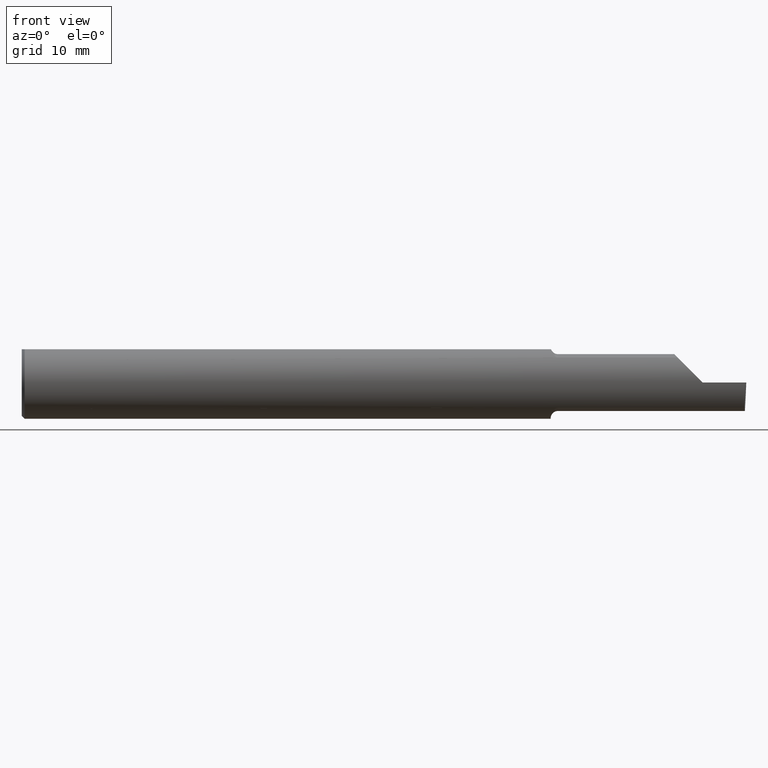
[diagram: clean part render]
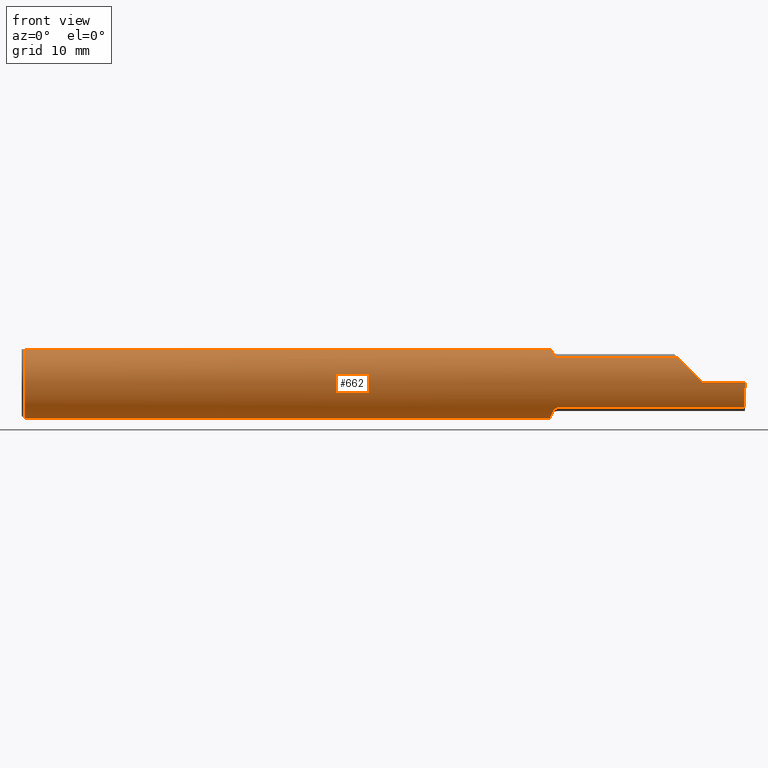
[diagram: same view with one face highlighted and labeled with its STEP entity id]
A machine part, front view. The second image highlights one B-rep face of the part: STEP entity #662.
In plain terms, the highlighted cylindrical surface (edge-blend (fillet) strip) has radius 3.175 mm, axis along (-1, -0, -0).
Its self-contained STEP definition (entity closure, byte-faithful):
#2 = EDGE_CURVE ( 'NONE', #615, #495, #666, .T. ) ;
#27 = CIRCLE ( 'NONE', #490, 0.1250000000000000000 ) ;
#30 = CARTESIAN_POINT ( 'NONE',  ( 2.493932522392288131, -0.1128945894460738342, -0.06276352435079111947 ) ) ;
#32 = CARTESIAN_POINT ( 'NONE',  ( 2.287236475649208511, -0.1128945894460737787, 0.06276352435079125824 ) ) ;
#35 = DIRECTION ( 'NONE',  ( 0.000000000000000000, 0.000000000000000000, -1.000000000000000000 ) ) ;
#40 = LINE ( 'NONE', #168, #307 ) ;
#54 = ORIENTED_EDGE ( 'NONE', *, *, #228, .F. ) ;
#55 = CARTESIAN_POINT ( 'NONE',  ( 0.000000000000000000, 0.04898979485566374442, 0.1149999999999999217 ) ) ;
#56 = CARTESIAN_POINT ( 'NONE',  ( 1.824999999999999956, 0.000000000000000000, 0.000000000000000000 ) ) ;
#62 = VERTEX_POINT ( 'NONE', #209 ) ;
#66 = FACE_OUTER_BOUND ( 'NONE', #442, .T. ) ;
#73 = CARTESIAN_POINT ( 'NONE',  ( 2.317450832343515454, -0.1250000000000000000, 0.03254916765648425969 ) ) ;
#79 = EDGE_CURVE ( 'NONE', #808, #133, #363, .T. ) ;
#90 = EDGE_CURVE ( 'NONE', #647, #615, #40, .T. ) ;
#94 = VECTOR ( 'NONE', #320, 39.37007874015748143 ) ;
#104 = LINE ( 'NONE', #735, #580 ) ;
#105 = CARTESIAN_POINT ( 'NONE',  ( 1.835190181894028605, -0.07991573988362411785, -0.09622915934337318566 ) ) ;
#110 = CARTESIAN_POINT ( 'NONE',  ( 1.849999999999999867, -0.09042045454545430405, 0.08630840862739518060 ) ) ;
#114 = CARTESIAN_POINT ( 'NONE',  ( 1.825234743326751952, -0.03866586649758532029, -0.1190059989239850707 ) ) ;
#123 = DIRECTION ( 'NONE',  ( -1.000000000000000000, -0.000000000000000000, -0.000000000000000000 ) ) ;
#127 = CARTESIAN_POINT ( 'NONE',  ( 0.000000000000000000, -0.04898979485566374442, 0.1149999999999999217 ) ) ;
#133 = VERTEX_POINT ( 'NONE', #537 ) ;
#142 = CARTESIAN_POINT ( 'NONE',  ( 1.826278290187167919, -0.04898979485482030799, 0.1149999999999999217 ) ) ;
#143 = CARTESIAN_POINT ( 'NONE',  ( 2.493502479154698914, -0.09042045454545441507, -0.08630840862739512509 ) ) ;
#151 = EDGE_CURVE ( 'NONE', #719, #743, #344, .T. ) ;
#157 = DIRECTION ( 'NONE',  ( 1.000000000000000000, 0.000000000000000000, 0.000000000000000000 ) ) ;
#164 = DIRECTION ( 'NONE',  ( -1.000000000000000000, -0.000000000000000000, -0.000000000000000000 ) ) ;
#168 = CARTESIAN_POINT ( 'NONE',  ( 3.749399456654637998E-32, -0.1249999999999999861, 3.061616997868380183E-16 ) ) ;
#180 = DIRECTION ( 'NONE',  ( 0.000000000000000000, 0.000000000000000000, -1.000000000000000000 ) ) ;
#201 = ORIENTED_EDGE ( 'NONE', *, *, #720, .F. ) ;
#209 = CARTESIAN_POINT ( 'NONE',  ( 0.01000000000000042348, 0.000000000000000000, -0.1250000000000000000 ) ) ;
#228 = EDGE_CURVE ( 'NONE', #426, #726, #27, .T. ) ;
#229 = AXIS2_PLACEMENT_3D ( 'NONE', #497, #246, #762 ) ;
#230 = CARTESIAN_POINT ( 'NONE',  ( 2.263691591372603895, -0.09042045454545419303, 0.08630840862739529162 ) ) ;
#231 = CARTESIAN_POINT ( 'NONE',  ( 1.839282510427138639, -0.08510692115743009878, -0.09158169095606859267 ) ) ;
#233 = CARTESIAN_POINT ( 'NONE',  ( 1.849999999999999867, -0.09042045454545437344, -0.08630840862739513897 ) ) ;
#237 = CARTESIAN_POINT ( 'NONE',  ( 1.830023755285530740, -0.06757875350159910088, -0.1052824340695055066 ) ) ;
#246 = DIRECTION ( 'NONE',  ( 1.000000000000000000, 0.000000000000000000, 0.000000000000000000 ) ) ;
#249 = LINE ( 'NONE', #127, #616 ) ;
#260 = DIRECTION ( 'NONE',  ( -1.000000000000000000, -0.000000000000000000, -0.000000000000000000 ) ) ;
#262 = ORIENTED_EDGE ( 'NONE', *, *, #547, .F. ) ;
#268 = CARTESIAN_POINT ( 'NONE',  ( 1.826278290187167919, -0.04898979485482030799, 0.1149999999999999217 ) ) ;
#275 = CARTESIAN_POINT ( 'NONE',  ( 2.350000000000000089, -0.1250000000000000278, 1.836970198721028825E-17 ) ) ;
#285 = VECTOR ( 'NONE', #260, 39.37007874015748143 ) ;
#287 = CARTESIAN_POINT ( 'NONE',  ( 2.493502479154698914, -0.09042045454545441507, -0.08630840862739512509 ) ) ;
#298 = DIRECTION ( 'NONE',  ( -1.000000000000000000, -0.000000000000000000, -0.000000000000000000 ) ) ;
#299 = CARTESIAN_POINT ( 'NONE',  ( 1.845169762358873644, -0.08954173371311466290, 0.08723520050116025104 ) ) ;
#301 = CARTESIAN_POINT ( 'NONE',  ( 2.495913306096507522, -0.1250000000000000000, 0.000000000000000000 ) ) ;
#304 = CARTESIAN_POINT ( 'NONE',  ( 1.849999999999999867, -0.09042045454545437344, -0.08630840862739513897 ) ) ;
#307 = VECTOR ( 'NONE', #164, 39.37007874015748143 ) ;
#320 = DIRECTION ( 'NONE',  ( 1.000000000000000000, 0.000000000000000000, 0.000000000000000000 ) ) ;
#329 = CARTESIAN_POINT ( 'NONE',  ( 1.824999999999999956, -0.02763636363636371579, -0.1219066503721543404 ) ) ;
#344 = B_SPLINE_CURVE_WITH_KNOTS ( 'NONE', 3,
 ( #233, #479, #434, #791, #231, #105, #485, #237, #725, #675, #657, #367 ),
 .UNSPECIFIED., .F., .F.,
 ( 4, 2, 2, 2, 2, 4 ),
 ( 1.964009442425878487E-07, 0.0002059214671021853500, 0.0004116465332601281077, 0.0008230966655760250071, 0.001234546797891921581, 0.001645996930207818589 ),
 .UNSPECIFIED. ) ;
#349 = ORIENTED_EDGE ( 'NONE', *, *, #2, .T. ) ;
#357 = CARTESIAN_POINT ( 'NONE',  ( 1.839945076695470139, -0.08578123596776277004, 0.09094459933485994629 ) ) ;
#363 = B_SPLINE_CURVE_WITH_KNOTS ( 'NONE', 3,
 ( #142, #400, #638, #600, #731, #357, #487, #299, #602, #110 ),
 .UNSPECIFIED., .F., .F.,
 ( 4, 2, 2, 2, 4 ),
 ( 5.067393806483457764E-07, 0.0007430328995834972359, 0.001114295979684921251, 0.001299927519735632553, 0.001485559059786344289 ),
 .UNSPECIFIED. ) ;
#367 = CARTESIAN_POINT ( 'NONE',  ( 1.825730677800976975, -0.04400000000000004602, -0.1169999999999999790 ) ) ;
#370 = CYLINDRICAL_SURFACE ( 'NONE', #770, 0.1250000000000000000 ) ;
#374 = CARTESIAN_POINT ( 'NONE',  ( 1.824999999999999956, -0.02763636363636371579, -0.1219066503721543404 ) ) ;
#383 = CARTESIAN_POINT ( 'NONE',  ( 0.000000000000000000, 0.000000000000000000, 0.000000000000000000 ) ) ;
#400 = CARTESIAN_POINT ( 'NONE',  ( 1.827426556614086817, -0.05801934803182792061, 0.1111534264545077366 ) ) ;
#413 = CARTESIAN_POINT ( 'NONE',  ( 2.350000000000000089, -0.1250000000000000278, 1.836970198721028825E-17 ) ) ;
#416 = VERTEX_POINT ( 'NONE', #143 ) ;
#423 = CARTESIAN_POINT ( 'NONE',  ( 2.494776490973177552, -0.1250000000000000278, -0.03254916765648418336 ) ) ;
#426 = VERTEX_POINT ( 'NONE', #329 ) ;
#428 = CARTESIAN_POINT ( 'NONE',  ( 0.01000000000000042348, 0.000000000000000000, 0.000000000000000000 ) ) ;
#432 = DIRECTION ( 'NONE',  ( 0.000000000000000000, 0.000000000000000000, 1.000000000000000000 ) ) ;
#434 = CARTESIAN_POINT ( 'NONE',  ( 1.844768270659623566, -0.08937924045984944887, -0.08740614068309868201 ) ) ;
#442 = EDGE_LOOP ( 'NONE', ( #262, #631, #734, #349, #509, #636, #573, #477, #518, #688, #54, #201, #561 ) ) ;
#470 = CARTESIAN_POINT ( 'NONE',  ( 2.263691591372603895, -0.09042045454545419303, 0.08630840862739529162 ) ) ;
#477 = ORIENTED_EDGE ( 'NONE', *, *, #689, .T. ) ;
#479 = CARTESIAN_POINT ( 'NONE',  ( 1.847250989814109179, -0.09042045454545442895, -0.08630840862739511121 ) ) ;
#483 = AXIS2_PLACEMENT_3D ( 'NONE', #428, #157, #35 ) ;
#485 = CARTESIAN_POINT ( 'NONE',  ( 1.833239374200247518, -0.07597265459956464850, -0.09939534496909259442 ) ) ;
#487 = CARTESIAN_POINT ( 'NONE',  ( 1.841446811421532326, -0.08721672169474553593, 0.08955973280246692925 ) ) ;
#490 = AXIS2_PLACEMENT_3D ( 'NONE', #56, #798, #180 ) ;
#495 = VERTEX_POINT ( 'NONE', #230 ) ;
#497 = CARTESIAN_POINT ( 'NONE',  ( 0.01000000000000042348, 0.000000000000000000, 0.000000000000000000 ) ) ;
#505 = CARTESIAN_POINT ( 'NONE',  ( 1.824999999999999956, 0.04898979485566374442, 0.1149999999999999217 ) ) ;
#509 = ORIENTED_EDGE ( 'NONE', *, *, #634, .F. ) ;
#514 = EDGE_CURVE ( 'NONE', #62, #684, #554, .T. ) ;
#518 = ORIENTED_EDGE ( 'NONE', *, *, #514, .T. ) ;
#537 = CARTESIAN_POINT ( 'NONE',  ( 1.849999999999999867, -0.09042045454545430405, 0.08630840862739518060 ) ) ;
#547 = EDGE_CURVE ( 'NONE', #416, #719, #104, .T. ) ;
#553 = EDGE_CURVE ( 'NONE', #416, #647, #760, .T. ) ;
#554 = CIRCLE ( 'NONE', #483, 0.1250000000000000000 ) ;
#559 = CARTESIAN_POINT ( 'NONE',  ( 1.825730677800976975, -0.04400000000000004602, -0.1169999999999999790 ) ) ;
#561 = ORIENTED_EDGE ( 'NONE', *, *, #151, .F. ) ;
#573 = ORIENTED_EDGE ( 'NONE', *, *, #738, .F. ) ;
#580 = VECTOR ( 'NONE', #298, 39.37007874015748143 ) ;
#600 = CARTESIAN_POINT ( 'NONE',  ( 1.834055883886138716, -0.07758562614434559579, 0.09811804109501627569 ) ) ;
#601 = LINE ( 'NONE', #805, #94 ) ;
#602 = CARTESIAN_POINT ( 'NONE',  ( 1.847488493957805566, -0.09042045454585206921, 0.08630840862697858329 ) ) ;
#615 = VERTEX_POINT ( 'NONE', #413 ) ;
#616 = VECTOR ( 'NONE', #745, 39.37007874015748143 ) ;
#621 = CARTESIAN_POINT ( 'NONE',  ( 0.01000000000000042348, 0.04898979485566374442, 0.1149999999999999217 ) ) ;
#631 = ORIENTED_EDGE ( 'NONE', *, *, #553, .T. ) ;
#634 = EDGE_CURVE ( 'NONE', #133, #495, #601, .T. ) ;
#636 = ORIENTED_EDGE ( 'NONE', *, *, #79, .F. ) ;
#638 = CARTESIAN_POINT ( 'NONE',  ( 1.829267307214414329, -0.06631395538221114550, 0.1063681193389249130 ) ) ;
#647 = VERTEX_POINT ( 'NONE', #815 ) ;
#657 = CARTESIAN_POINT ( 'NONE',  ( 1.826195811990451112, -0.04900285419228611605, -0.1151185847482000674 ) ) ;
#662 = ADVANCED_FACE ( 'NONE', ( #66 ), #370, .T. ) ;
#666 =( BOUNDED_CURVE ( )  B_SPLINE_CURVE ( 3, ( #275, #73, #32, #470 ),
 .UNSPECIFIED., .F., .F. ) 
 B_SPLINE_CURVE_WITH_KNOTS ( ( 4, 4 ),
 ( 4.712388980384689674, 5.474523801125208422 ),
 .UNSPECIFIED. ) 
 CURVE ( )  GEOMETRIC_REPRESENTATION_ITEM ( )  RATIONAL_B_SPLINE_CURVE ( ( 1.000000000000000000, 0.9521787881681380572, 0.9521787881681380572, 1.000000000000000000 ) ) 
 REPRESENTATION_ITEM ( '' )  );
#674 = LINE ( 'NONE', #55, #285 ) ;
#675 = CARTESIAN_POINT ( 'NONE',  ( 1.826893175330810415, -0.05388688644707115283, -0.1129101901561701399 ) ) ;
#677 = EDGE_CURVE ( 'NONE', #726, #684, #674, .T. ) ;
#684 = VERTEX_POINT ( 'NONE', #621 ) ;
#688 = ORIENTED_EDGE ( 'NONE', *, *, #677, .F. ) ;
#689 = EDGE_CURVE ( 'NONE', #767, #62, #703, .T. ) ;
#691 = B_SPLINE_CURVE_WITH_KNOTS ( 'NONE', 3,
 ( #559, #114, #748, #374 ),
 .UNSPECIFIED., .F., .F.,
 ( 4, 4 ),
 ( 0.001645996930207818589, 0.002084692492981599955 ),
 .UNSPECIFIED. ) ;
#703 = CIRCLE ( 'NONE', #229, 0.1250000000000000000 ) ;
#719 = VERTEX_POINT ( 'NONE', #304 ) ;
#720 = EDGE_CURVE ( 'NONE', #743, #426, #691, .T. ) ;
#725 = CARTESIAN_POINT ( 'NONE',  ( 1.828809610961340759, -0.06315583524588906650, -0.1079992965090798979 ) ) ;
#726 = VERTEX_POINT ( 'NONE', #505 ) ;
#731 = CARTESIAN_POINT ( 'NONE',  ( 1.835996102358147919, -0.08116363444194668597, 0.09515685373904948785 ) ) ;
#734 = ORIENTED_EDGE ( 'NONE', *, *, #90, .T. ) ;
#735 = CARTESIAN_POINT ( 'NONE',  ( 2.162237909999999985, -0.09042045454545441507, -0.08630840862739512509 ) ) ;
#738 = EDGE_CURVE ( 'NONE', #767, #808, #249, .T. ) ;
#743 = VERTEX_POINT ( 'NONE', #751 ) ;
#745 = DIRECTION ( 'NONE',  ( 1.000000000000000000, 0.000000000000000000, 0.000000000000000000 ) ) ;
#748 = CARTESIAN_POINT ( 'NONE',  ( 1.824999999999999956, -0.03321131449419137405, -0.1206428032506770415 ) ) ;
#751 = CARTESIAN_POINT ( 'NONE',  ( 1.825730677800976975, -0.04400000000000004602, -0.1169999999999999790 ) ) ;
#760 =( BOUNDED_CURVE ( )  B_SPLINE_CURVE ( 3, ( #287, #30, #423, #301 ),
 .UNSPECIFIED., .F., .T. ) 
 B_SPLINE_CURVE_WITH_KNOTS ( ( 4, 4 ),
 ( 0.3451966888489943486, 1.107331509589511098 ),
 .UNSPECIFIED. ) 
 CURVE ( )  GEOMETRIC_REPRESENTATION_ITEM ( )  RATIONAL_B_SPLINE_CURVE ( ( 1.000000000000000000, 0.9521787881681383903, 0.9521787881681383903, 1.000000000000000000 ) ) 
 REPRESENTATION_ITEM ( '' )  );
#762 = DIRECTION ( 'NONE',  ( 0.000000000000000000, 0.000000000000000000, -1.000000000000000000 ) ) ;
#765 = CARTESIAN_POINT ( 'NONE',  ( 0.01000000000000042348, -0.04898979485566374442, 0.1149999999999999217 ) ) ;
#767 = VERTEX_POINT ( 'NONE', #765 ) ;
#770 = AXIS2_PLACEMENT_3D ( 'NONE', #383, #123, #432 ) ;
#791 = CARTESIAN_POINT ( 'NONE',  ( 1.840850385411617385, -0.08673035960621022777, -0.09003514189954206492 ) ) ;
#798 = DIRECTION ( 'NONE',  ( 1.000000000000000000, 0.000000000000000000, 0.000000000000000000 ) ) ;
#805 = CARTESIAN_POINT ( 'NONE',  ( 2.162237909999999985, -0.09042045454545441507, 0.08630840862739512509 ) ) ;
#808 = VERTEX_POINT ( 'NONE', #268 ) ;
#815 = CARTESIAN_POINT ( 'NONE',  ( 2.495913306096507522, -0.1250000000000000000, 0.000000000000000000 ) ) ;